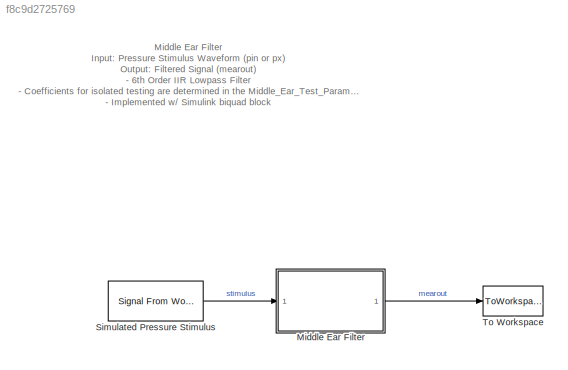
MODEL slx_f8c9d2725769
KIND model
CONFIG AbsTol = auto
CONFIG EnableMultiTasking = off
CONFIG FixedStep = auto
CONFIG InitFcn = Middle_Ear_Test_Parameters
CONFIG MaxStep = auto
CONFIG MinStep = auto
CONFIG RelTol = 1e-3
CONFIG SampleTimeConstraint = Unconstrained
CONFIG Solver = VariableStepAuto
CONFIG SolverName = VariableStepAuto
CONFIG StartTime = 0.0
CONFIG StopFcn = Verify_Middle_Ear
CONFIG StopTime = testtime
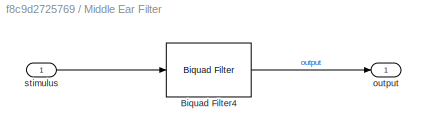
BLOCK [SubSystem] Middle Ear Filter
  Ports = [1, 1]
  RequestExecContextInheritance = off
  ShowPortLabels = none
BLOCK [Reference] Middle Ear Filter/Biquad Filter4  REF=dsparch4/Biquad Filter
  Ports = [1, 1]
  SourceBlock = dsparch4/Biquad Filter
  SourceProductBaseCode = DS
  SourceProductName = DSP System Toolbox
  SourceType = Biquad Filter
  UserDataPersistent = on
BLOCK [Outport] Middle Ear Filter/output
  IconDisplay = Port number
BLOCK [Inport] Middle Ear Filter/stimulus
  IconDisplay = Port number
BLOCK [Reference] Simulated Pressure Stimulus  REF=dspsrcs4/Signal From
Workspace
  Ports = [0, 1]
  SourceBlock = dspsrcs4/Signal From\nWorkspace
  SourceProductBaseCode = DS
  SourceProductName = DSP System Toolbox
  SourceType = Signal From Workspace
BLOCK [ToWorkspace] To Workspace
  MaxDataPoints = inf
  Ports = [1]
  SampleTime = -1
  Save2DSignal = 2-D array (concatenate along first dimension)
  VariableName = mearout
ANNOTATION (root): Middle Ear Filter Input : Pressure Stimulus Waveform (pin or px) Output : Filtered Signal (mearout) - 6th Order IIR Lowpass Filter - Coefficients for isolated testing are determined in the Middle_Ear_Test_Parameters init script - Implemented w/ Simulink biquad block
LINE Middle Ear Filter/Biquad Filter4:1 -> Middle Ear Filter/output:1
LINE Middle Ear Filter/stimulus:1 -> Middle Ear Filter/Biquad Filter4:1
LINE Middle Ear Filter:1 -> To Workspace:1
LINE Simulated Pressure Stimulus:1 -> Middle Ear Filter:1
